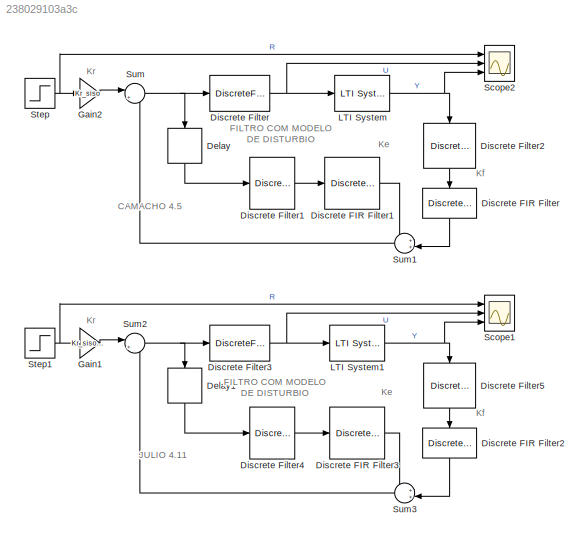
MODEL slx_238029103a3c
KIND model
CONFIG AbsTol = auto
CONFIG EnableMultiTasking = off
CONFIG FixedStep = auto
CONFIG MaxStep = auto
CONFIG MinStep = auto
CONFIG RelTol = 1e-3
CONFIG SampleTimeConstraint = Unconstrained
CONFIG SolverName = VariableStepAuto
CONFIG StartTime = 0.0
CONFIG StopTime = 30
BLOCK [Delay] Delay
  DelayLength = 1
  InitialCondition = 0
  InputPortMap = u0
  NameLocation = left
  Ports = [1, 1]
BLOCK [Delay] Delay1
  DelayLength = 1
  InitialCondition = 0
  InputPortMap = u0
  NameLocation = left
  Ports = [1, 1]
BLOCK [DiscreteFir] Discrete FIR Filter
  Coefficients = KF_siso
  InputPortMap = u0
  NameLocation = left
  OutputPortMap = o0
  Ports = [1, 1]
  SampleTime = 1
BLOCK [DiscreteFir] Discrete FIR Filter1
  Coefficients = KE_siso
  InputPortMap = u0
  OutputPortMap = o0
  Ports = [1, 1]
  SampleTime = 1
BLOCK [DiscreteFir] Discrete FIR Filter2
  Coefficients = KF_siso_2
  InputPortMap = u0
  NameLocation = left
  OutputPortMap = o0
  Ports = [1, 1]
  SampleTime = 1
BLOCK [DiscreteFir] Discrete FIR Filter3
  Coefficients = KE_siso_2
  InputPortMap = u0
  OutputPortMap = o0
  Ports = [1, 1]
  SampleTime = 1
BLOCK [DiscreteFilter] Discrete Filter
  Denominator = [1 -1]
  InputPortMap = u0
  Ports = [1, 1]
  SampleTime = 1
BLOCK [DiscreteFilter] Discrete Filter1
  Denominator = C_siso
  InputPortMap = u0
  Ports = [1, 1]
  SampleTime = 1
BLOCK [DiscreteFilter] Discrete Filter2
  Denominator = C_siso
  InputPortMap = u0
  NameLocation = left
  Ports = [1, 1]
  SampleTime = 1
BLOCK [DiscreteFilter] Discrete Filter3
  Denominator = [1 -1]
  InputPortMap = u0
  Ports = [1, 1]
  SampleTime = 1
BLOCK [DiscreteFilter] Discrete Filter4
  Denominator = C_siso_2
  InputPortMap = u0
  Ports = [1, 1]
  SampleTime = 1
BLOCK [DiscreteFilter] Discrete Filter5
  Denominator = C_siso_2
  InputPortMap = u0
  NameLocation = left
  Ports = [1, 1]
  SampleTime = 1
BLOCK [Gain] Gain1
  Gain = Kr_siso_2
BLOCK [Gain] Gain2
  Gain = Kr_siso
BLOCK [Reference] LTI System  REF=cstblocks/LTI System
  Ports = [1, 1]
  SourceBlock = cstblocks/LTI System
  SourceProductBaseCode = CT
  SourceType = LTI Block
BLOCK [Reference] LTI System1  REF=cstblocks/LTI System
  Ports = [1, 1]
  SourceBlock = cstblocks/LTI System
  SourceProductBaseCode = CT
  SourceType = LTI Block
BLOCK [Scope] Scope1
  Floating = off
  NumInputPorts = 3
  Ports = [3]
  ScopeSpecificationString = Simulink.scopes.TimeScopeBlockCfg('CurrentConfiguration', extmgr.ConfigurationSet(extmgr.Configuration('Core','General UI',true,'FigureColor',[1 1 1]),extmgr.Configuration('Core','Source UI',true),extmgr.Configuration('Sources','WiredSimulink',true),extmgr.Configuration('Visuals','Time Domain',true,'SerializedDisplays',{struct('MinYLimReal','-0.14576','MaxYLimReal','1.31182','YLabelReal','','MinYL...<+1736ch>
BLOCK [Scope] Scope2
  Floating = off
  NumInputPorts = 3
  Ports = [3]
  ScopeSpecificationString = Simulink.scopes.TimeScopeBlockCfg('CurrentConfiguration', extmgr.ConfigurationSet(extmgr.Configuration('Core','General UI',true,'FigureColor',[1 1 1]),extmgr.Configuration('Core','Source UI',true),extmgr.Configuration('Sources','WiredSimulink',true,'DataLoggingVariableName','ScopeData1'),extmgr.Configuration('Visuals','Time Domain',true,'SerializedDisplays',{struct('MinYLimReal','-0.13491','MaxYLi...<+1774ch>
BLOCK [Step] Step
  SampleTime = 1
BLOCK [Step] Step1
  SampleTime = 1
BLOCK [Sum] Sum
  Inputs = |+-
  Ports = [2, 1]
BLOCK [Sum] Sum1
  Inputs = ++|
  NameLocation = top
  Ports = [2, 1]
BLOCK [Sum] Sum2
  Inputs = |+-
  Ports = [2, 1]
BLOCK [Sum] Sum3
  Inputs = ++|
  NameLocation = top
  Ports = [2, 1]
ANNOTATION (root): Ke
ANNOTATION (root): Kf
ANNOTATION (root): Kr
ANNOTATION (root): CAMACHO 4.5
ANNOTATION (root): FILTRO COM MODELO DE DISTURBIO
ANNOTATION (root): JULIO 4.11
LINE Delay1:1 -> Discrete Filter4:1
LINE Delay:1 -> Discrete Filter1:1
LINE Discrete FIR Filter1:1 -> Sum1:1
LINE Discrete FIR Filter2:1 -> Sum3:2
LINE Discrete FIR Filter3:1 -> Sum3:1
LINE Discrete FIR Filter:1 -> Sum1:2
LINE Discrete Filter1:1 -> Discrete FIR Filter1:1
LINE Discrete Filter2:1 -> Discrete FIR Filter:1
NET Discrete Filter3:1 -> LTI System1:1, Scope1:2
LINE Discrete Filter4:1 -> Discrete FIR Filter3:1
LINE Discrete Filter5:1 -> Discrete FIR Filter2:1
NET Discrete Filter:1 -> LTI System:1, Scope2:2
LINE Gain1:1 -> Sum2:1
LINE Gain2:1 -> Sum:1
NET LTI System1:1 -> Discrete Filter5:1, Scope1:3
NET LTI System:1 -> Discrete Filter2:1, Scope2:3
NET Step1:1 -> Gain1:1, Scope1:1
NET Step:1 -> Gain2:1, Scope2:1
LINE Sum1:1 -> Sum:2
NET Sum2:1 -> Delay1:1, Discrete Filter3:1
LINE Sum3:1 -> Sum2:2
NET Sum:1 -> Delay:1, Discrete Filter:1
note: NET lines group one-source signal fan-out (src -> all destinations, sorted); 1:1 wires keep LINE
